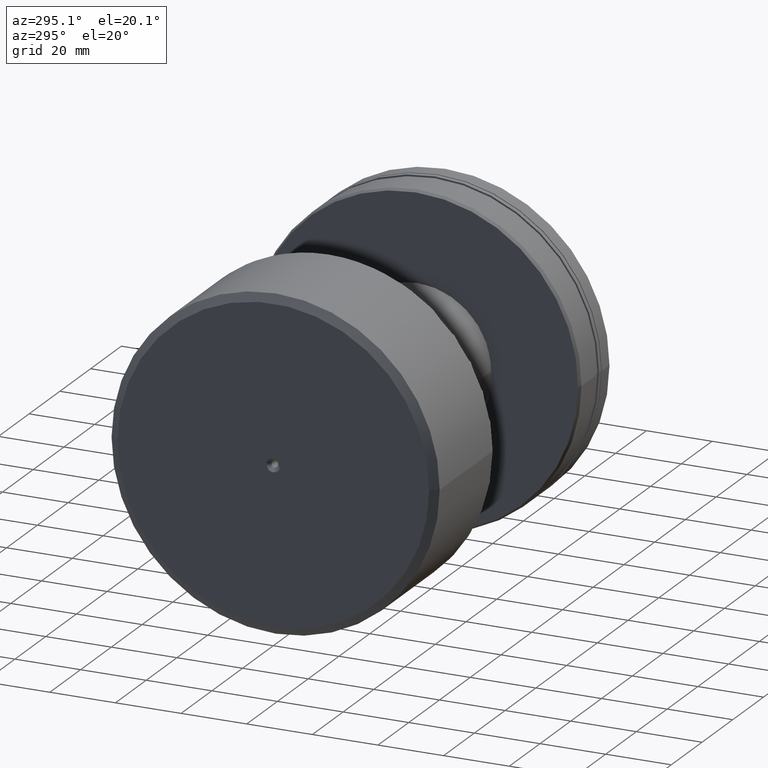
[diagram: clean part render]
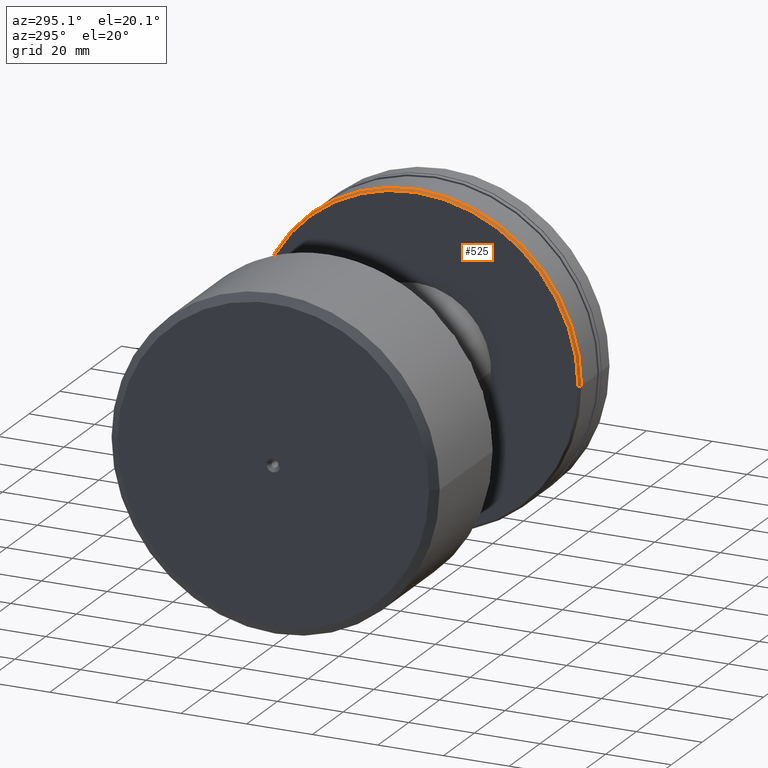
[diagram: same view with one face highlighted and labeled with its STEP entity id]
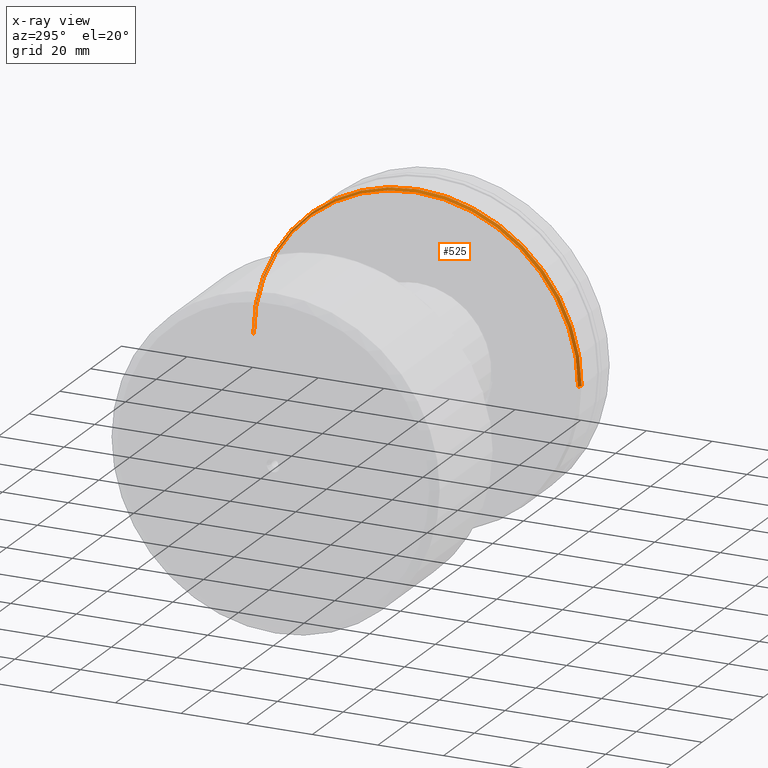
[diagram: x-ray of the same camera — body ghosted, the highlighted face saturated]
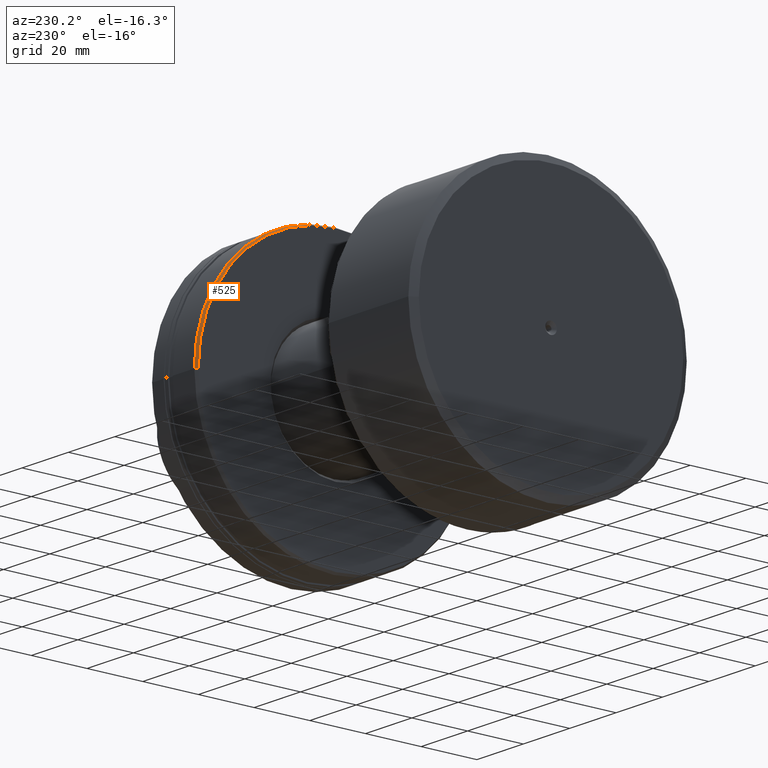
[diagram: same view with one face highlighted and labeled with its STEP entity id]
A machine part, auxiliary view. The second image highlights one B-rep face of the part: STEP entity #525.
The next image is the same camera in x-ray: the body ghosted, the highlighted face saturated — about 4% of this face is hidden behind the body in this view.
A second angle (auxiliary view) of the same face is appended — the face is thin or edge-on in the first view.
In plain terms, the highlighted conical surface has half-angle 30 deg.
Its self-contained STEP definition (entity closure, byte-faithful):
#97 = VECTOR ( 'NONE', #999, 1000.000000000000227 ) ;
#123 = DIRECTION ( 'NONE',  ( -2.807981337180902194E-16, 1.000000000000000000, 0.000000000000000000 ) ) ;
#129 = CIRCLE ( 'NONE', #1067, 50.00000000000000000 ) ;
#254 = CARTESIAN_POINT ( 'NONE',  ( -45.20000000000001705, 49.42264973081047685, 0.000000000000000000 ) ) ;
#268 = FACE_OUTER_BOUND ( 'NONE', #2083, .T. ) ;
#280 = VERTEX_POINT ( 'NONE', #403 ) ;
#358 = CONICAL_SURFACE ( 'NONE', #1031, 49.42264973081048396, 0.5235987755982989267 ) ;
#403 = CARTESIAN_POINT ( 'NONE',  ( -45.20000000000001705, 49.42264973081047685, 0.000000000000000000 ) ) ;
#525 = ADVANCED_FACE ( 'NONE', ( #268 ), #358, .T. ) ;
#784 = LINE ( 'NONE', #254, #97 ) ;
#828 = DIRECTION ( 'NONE',  ( -2.775557561562891351E-16, 1.000000000000000000, 0.000000000000000000 ) ) ;
#846 = DIRECTION ( 'NONE',  ( 1.000000000000000000, 2.485414848852932351E-16, -0.000000000000000000 ) ) ;
#926 = VECTOR ( 'NONE', #1593, 1000.000000000000227 ) ;
#975 = DIRECTION ( 'NONE',  ( 1.000000000000000000, 2.485414848852932351E-16, -0.000000000000000000 ) ) ;
#976 = EDGE_CURVE ( 'NONE', #1628, #1826, #129, .T. ) ;
#981 = CARTESIAN_POINT ( 'NONE',  ( -45.20000000000000284, -3.708233295962651802E-15, 0.000000000000000000 ) ) ;
#999 = DIRECTION ( 'NONE',  ( 0.8660254037844384856, 0.5000000000000002220, 0.000000000000000000 ) ) ;
#1031 = AXIS2_PLACEMENT_3D ( 'NONE', #981, #1522, #2216 ) ;
#1067 = AXIS2_PLACEMENT_3D ( 'NONE', #2198, #975, #828 ) ;
#1088 = AXIS2_PLACEMENT_3D ( 'NONE', #2111, #846, #123 ) ;
#1148 = VERTEX_POINT ( 'NONE', #1583 ) ;
#1279 = CARTESIAN_POINT ( 'NONE',  ( -45.19999999999998863, -49.42264973081049106, 6.052528979821785225E-15 ) ) ;
#1365 = ORIENTED_EDGE ( 'NONE', *, *, #976, .F. ) ;
#1372 = EDGE_CURVE ( 'NONE', #280, #1148, #2305, .T. ) ;
#1392 = ORIENTED_EDGE ( 'NONE', *, *, #1894, .F. ) ;
#1471 = CARTESIAN_POINT ( 'NONE',  ( -44.20000000000019469, 49.99999999999999289, 0.000000000000000000 ) ) ;
#1515 = ORIENTED_EDGE ( 'NONE', *, *, #2025, .T. ) ;
#1522 = DIRECTION ( 'NONE',  ( 1.000000000000000000, 2.485414848852932351E-16, -0.000000000000000000 ) ) ;
#1583 = CARTESIAN_POINT ( 'NONE',  ( -45.19999999999998863, -49.42264973081049106, 6.087881487779275655E-15 ) ) ;
#1593 = DIRECTION ( 'NONE',  ( 0.8660254037844387076, -0.4999999999999997780, 6.123233995736766036E-17 ) ) ;
#1628 = VERTEX_POINT ( 'NONE', #1471 ) ;
#1826 = VERTEX_POINT ( 'NONE', #2278 ) ;
#1894 = EDGE_CURVE ( 'NONE', #280, #1628, #784, .T. ) ;
#1945 = LINE ( 'NONE', #1279, #926 ) ;
#1957 = ORIENTED_EDGE ( 'NONE', *, *, #1372, .T. ) ;
#2025 = EDGE_CURVE ( 'NONE', #1148, #1826, #1945, .T. ) ;
#2083 = EDGE_LOOP ( 'NONE', ( #1957, #1515, #1365, #1392 ) ) ;
#2111 = CARTESIAN_POINT ( 'NONE',  ( -45.20000000000000284, -3.708233295962651802E-15, 0.000000000000000000 ) ) ;
#2198 = CARTESIAN_POINT ( 'NONE',  ( -44.20000000000018048, -3.459691811077403828E-15, 0.000000000000000000 ) ) ;
#2216 = DIRECTION ( 'NONE',  ( -2.807981337180902194E-16, 1.000000000000000000, 0.000000000000000000 ) ) ;
#2278 = CARTESIAN_POINT ( 'NONE',  ( -44.20000000000016627, -50.00000000000000711, 6.123233995736766085E-15 ) ) ;
#2305 = CIRCLE ( 'NONE', #1088, 49.42264973081048396 ) ;